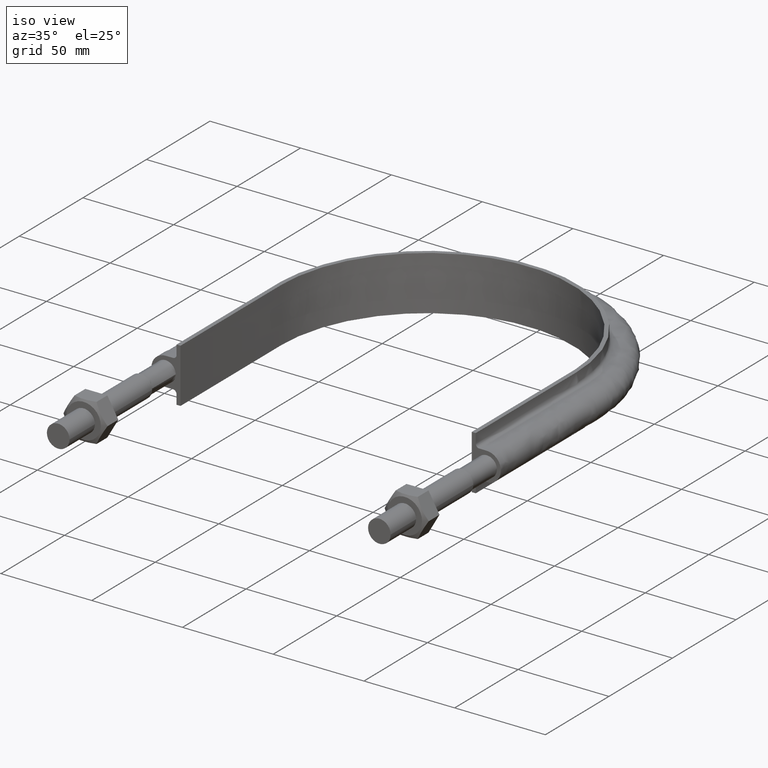
[diagram: clean part render]
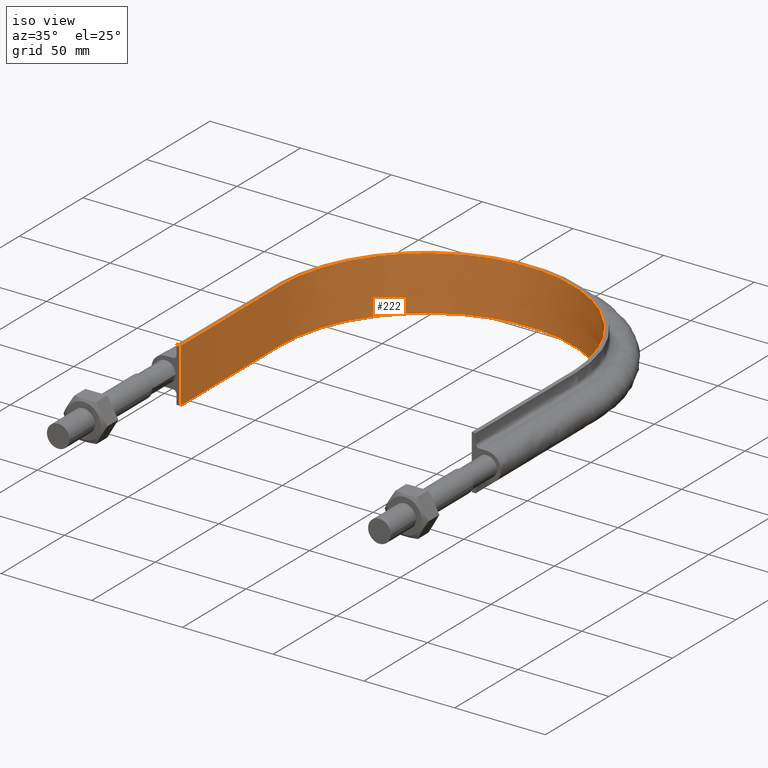
[diagram: same view with one face highlighted and labeled with its STEP entity id]
A machine part, iso view. The second image highlights one B-rep face of the part: STEP entity #222.
In plain terms, the highlighted face is a SurfaceOfExtrusion surface.
Its self-contained STEP definition (entity closure, byte-faithful):
#222 = ADVANCED_FACE( '', ( #268 ), #269, .T. );
#268 = FACE_OUTER_BOUND( '', #370, .T. );
#269 = SURFACE_OF_LINEAR_EXTRUSION( '', #371, #372 );
#370 = EDGE_LOOP( '', ( #1397, #1398, #1399, #1400 ) );
#371 = B_SPLINE_CURVE_WITH_KNOTS( '', 3, ( #1401, #1402, #1403, #1404, #1405, #1406, #1407, #1408, #1409, #1410, #1411, #1412, #1413, #1414, #1415, #1416, #1417, #1418 ), .UNSPECIFIED., .F., .F., ( 4, 3, 1, 1, 1, 1, 1, 1, 1, 1, 3, 4 ), ( -9.00000000000000, -8.00000000000000, -7.50000000000000, -7.00000000000000, -6.00000000000000, -5.00000000000000, -4.00000000000000, -3.00000000000000, -2.00000000000000, -1.50000000000000, -1.00000000000000, 0.000000000000000 ), .UNSPECIFIED. );
#372 = VECTOR( '', #1419, 1000.00000000000 );
#1397 = ORIENTED_EDGE( '', *, *, #1667, .F. );
#1398 = ORIENTED_EDGE( '', *, *, #1656, .F. );
#1399 = ORIENTED_EDGE( '', *, *, #1660, .T. );
#1400 = ORIENTED_EDGE( '', *, *, #1664, .T. );
#1401 = CARTESIAN_POINT( '', ( -80.2500000000000, 84.5000000000001, -270.018143165184 ) );
#1402 = CARTESIAN_POINT( '', ( -80.2500000000000, 110.920000000000, -270.018143165184 ) );
#1403 = CARTESIAN_POINT( '', ( -80.2500000000000, 137.340000000000, -270.018143165184 ) );
#1404 = CARTESIAN_POINT( '', ( -80.2500000000000, 163.760000000000, -270.018143165184 ) );
#1405 = CARTESIAN_POINT( '', ( -80.2500000000000, 169.750586735035, -270.018143165184 ) );
#1406 = CARTESIAN_POINT( '', ( -78.8786264043398, 181.768376163953, -270.018143165184 ) );
#1407 = CARTESIAN_POINT( '', ( -70.9339277239971, 204.577888193896, -270.018143165184 ) );
#1408 = CARTESIAN_POINT( '', ( -51.7427931998640, 228.644676397937, -270.018143165184 ) );
#1409 = CARTESIAN_POINT( '', ( -18.4670121667005, 244.668622663522, -270.018143165184 ) );
#1410 = CARTESIAN_POINT( '', ( 18.4670121667005, 244.668622663522, -270.018143165184 ) );
#1411 = CARTESIAN_POINT( '', ( 51.7427931998639, 228.644676397937, -270.018143165184 ) );
#1412 = CARTESIAN_POINT( '', ( 70.9339277239970, 204.577888193896, -270.018143165184 ) );
#1413 = CARTESIAN_POINT( '', ( 78.8786264043398, 181.768376163953, -270.018143165184 ) );
#1414 = CARTESIAN_POINT( '', ( 80.2500000000000, 169.750586735035, -270.018143165184 ) );
#1415 = CARTESIAN_POINT( '', ( 80.2499999999999, 163.760000000000, -270.018143165184 ) );
#1416 = CARTESIAN_POINT( '', ( 80.2499999999999, 137.340000000000, -270.018143165184 ) );
#1417 = CARTESIAN_POINT( '', ( 80.2499999999999, 110.920000000000, -270.018143165184 ) );
#1418 = CARTESIAN_POINT( '', ( 80.2499999999999, 84.5000000000000, -270.018143165184 ) );
#1419 = DIRECTION( '', ( 0.000000000000000, 0.000000000000000, 1.00000000000000 ) );
#1656 = EDGE_CURVE( '', #1725, #1726, #1727, .T. );
#1660 = EDGE_CURVE( '', #1725, #1733, #1734, .T. );
#1664 = EDGE_CURVE( '', #1733, #1740, #1741, .T. );
#1667 = EDGE_CURVE( '', #1726, #1740, #1745, .T. );
#1725 = VERTEX_POINT( '', #1855 );
#1726 = VERTEX_POINT( '', #1856 );
#1727 = LINE( '', #1857, #1858 );
#1733 = VERTEX_POINT( '', #1896 );
#1734 = B_SPLINE_CURVE_WITH_KNOTS( '', 3, ( #1897, #1898, #1899, #1900, #1901, #1902, #1903, #1904, #1905, #1906, #1907, #1908, #1909, #1910, #1911, #1912, #1913, #1914 ), .UNSPECIFIED., .F., .F., ( 4, 3, 1, 1, 1, 1, 1, 1, 1, 1, 3, 4 ), ( -9.00000000000000, -8.00000000000000, -7.50000000000000, -7.00000000000000, -6.00000000000000, -5.00000000000000, -4.00000000000000, -3.00000000000000, -2.00000000000000, -1.50000000000000, -1.00000000000000, 0.000000000000000 ), .UNSPECIFIED. );
#1740 = VERTEX_POINT( '', #1948 );
#1741 = LINE( '', #1949, #1950 );
#1745 = B_SPLINE_CURVE_WITH_KNOTS( '', 3, ( #1985, #1986, #1987, #1988, #1989, #1990, #1991, #1992, #1993, #1994, #1995, #1996, #1997, #1998, #1999, #2000, #2001, #2002 ), .UNSPECIFIED., .F., .F., ( 4, 3, 1, 1, 1, 1, 1, 1, 1, 1, 3, 4 ), ( -9.00000000000000, -8.00000000000000, -7.50000000000000, -7.00000000000000, -6.00000000000000, -5.00000000000000, -4.00000000000000, -3.00000000000000, -2.00000000000000, -1.50000000000000, -1.00000000000000, 0.000000000000000 ), .UNSPECIFIED. );
#1855 = CARTESIAN_POINT( '', ( -80.2499999999999, 84.5000000000003, -15.0000000000000 ) );
#1856 = CARTESIAN_POINT( '', ( -80.2499999999999, 84.5000000000003, 15.0000000000000 ) );
#1857 = CARTESIAN_POINT( '', ( -80.2500000000000, 84.5000000000001, -270.018143165184 ) );
#1858 = VECTOR( '', #2313, 1000.00000000000 );
#1896 = CARTESIAN_POINT( '', ( 80.2499999999999, 84.5000000000000, -15.0000000000002 ) );
#1897 = CARTESIAN_POINT( '', ( -80.2500000000000, 84.5000000000001, -15.0000000000001 ) );
#1898 = CARTESIAN_POINT( '', ( -80.2500000000000, 110.920000000000, -15.0000000000001 ) );
#1899 = CARTESIAN_POINT( '', ( -80.2500000000000, 137.340000000000, -15.0000000000001 ) );
#1900 = CARTESIAN_POINT( '', ( -80.2500000000000, 163.760000000000, -15.0000000000001 ) );
#1901 = CARTESIAN_POINT( '', ( -80.2500000000000, 169.750586735035, -15.0000000000001 ) );
#1902 = CARTESIAN_POINT( '', ( -78.8786264043398, 181.768376163953, -15.0000000000001 ) );
#1903 = CARTESIAN_POINT( '', ( -70.9339277239971, 204.577888193896, -15.0000000000001 ) );
#1904 = CARTESIAN_POINT( '', ( -51.7427931998640, 228.644676397937, -15.0000000000001 ) );
#1905 = CARTESIAN_POINT( '', ( -18.4670121667005, 244.668622663522, -15.0000000000001 ) );
#1906 = CARTESIAN_POINT( '', ( 18.4670121667005, 244.668622663522, -15.0000000000001 ) );
#1907 = CARTESIAN_POINT( '', ( 51.7427931998639, 228.644676397937, -15.0000000000001 ) );
#1908 = CARTESIAN_POINT( '', ( 70.9339277239970, 204.577888193896, -15.0000000000001 ) );
#1909 = CARTESIAN_POINT( '', ( 78.8786264043398, 181.768376163953, -15.0000000000001 ) );
#1910 = CARTESIAN_POINT( '', ( 80.2500000000000, 169.750586735035, -15.0000000000001 ) );
#1911 = CARTESIAN_POINT( '', ( 80.2499999999999, 163.760000000000, -15.0000000000001 ) );
#1912 = CARTESIAN_POINT( '', ( 80.2499999999999, 137.340000000000, -15.0000000000001 ) );
#1913 = CARTESIAN_POINT( '', ( 80.2499999999999, 110.920000000000, -15.0000000000001 ) );
#1914 = CARTESIAN_POINT( '', ( 80.2499999999999, 84.5000000000000, -15.0000000000001 ) );
#1948 = CARTESIAN_POINT( '', ( 80.2500000000001, 84.5000000000003, 15.0000000000000 ) );
#1949 = CARTESIAN_POINT( '', ( 80.2499999999999, 84.5000000000000, -270.018143165184 ) );
#1950 = VECTOR( '', #2317, 1000.00000000000 );
#1985 = CARTESIAN_POINT( '', ( -80.2500000000000, 84.5000000000001, 14.9999999999999 ) );
#1986 = CARTESIAN_POINT( '', ( -80.2500000000000, 110.920000000000, 14.9999999999999 ) );
#1987 = CARTESIAN_POINT( '', ( -80.2500000000000, 137.340000000000, 14.9999999999999 ) );
#1988 = CARTESIAN_POINT( '', ( -80.2500000000000, 163.760000000000, 14.9999999999999 ) );
#1989 = CARTESIAN_POINT( '', ( -80.2500000000000, 169.750586735035, 14.9999999999999 ) );
#1990 = CARTESIAN_POINT( '', ( -78.8786264043398, 181.768376163953, 14.9999999999999 ) );
#1991 = CARTESIAN_POINT( '', ( -70.9339277239971, 204.577888193896, 14.9999999999999 ) );
#1992 = CARTESIAN_POINT( '', ( -51.7427931998640, 228.644676397937, 14.9999999999999 ) );
#1993 = CARTESIAN_POINT( '', ( -18.4670121667005, 244.668622663522, 14.9999999999999 ) );
#1994 = CARTESIAN_POINT( '', ( 18.4670121667005, 244.668622663522, 14.9999999999999 ) );
#1995 = CARTESIAN_POINT( '', ( 51.7427931998639, 228.644676397937, 14.9999999999999 ) );
#1996 = CARTESIAN_POINT( '', ( 70.9339277239970, 204.577888193896, 14.9999999999999 ) );
#1997 = CARTESIAN_POINT( '', ( 78.8786264043398, 181.768376163953, 14.9999999999999 ) );
#1998 = CARTESIAN_POINT( '', ( 80.2500000000000, 169.750586735035, 14.9999999999999 ) );
#1999 = CARTESIAN_POINT( '', ( 80.2499999999999, 163.760000000000, 14.9999999999999 ) );
#2000 = CARTESIAN_POINT( '', ( 80.2499999999999, 137.340000000000, 14.9999999999999 ) );
#2001 = CARTESIAN_POINT( '', ( 80.2499999999999, 110.920000000000, 14.9999999999999 ) );
#2002 = CARTESIAN_POINT( '', ( 80.2499999999999, 84.5000000000000, 14.9999999999999 ) );
#2313 = DIRECTION( '', ( 0.000000000000000, 0.000000000000000, 1.00000000000000 ) );
#2317 = DIRECTION( '', ( 0.000000000000000, 0.000000000000000, 1.00000000000000 ) );